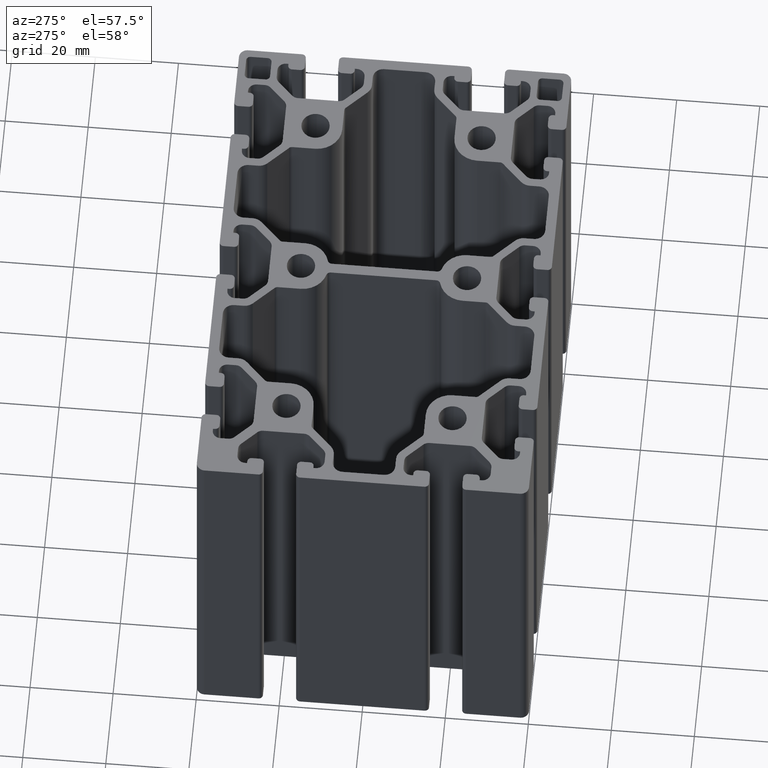
[diagram: clean part render]
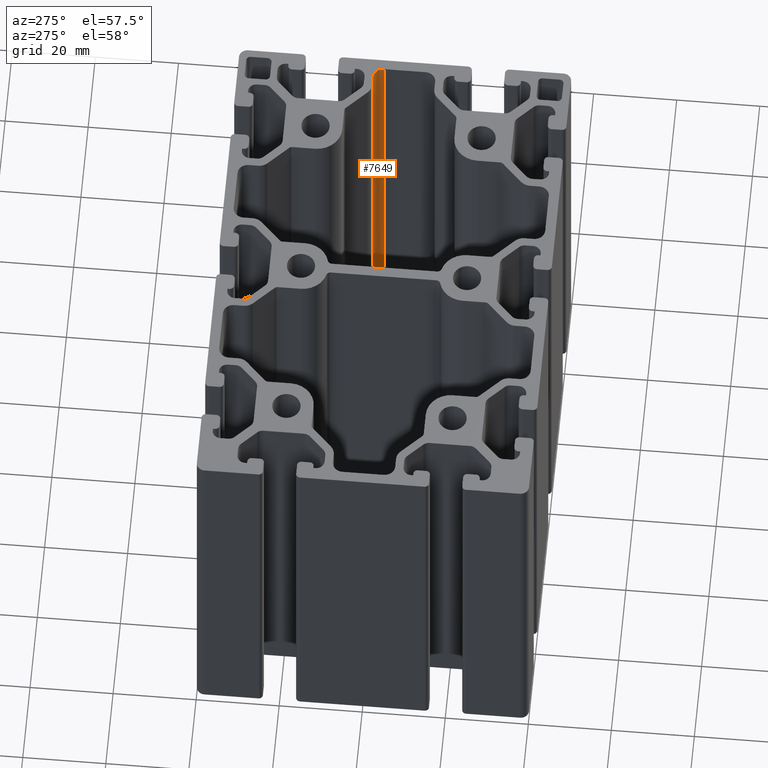
[diagram: same view with one face highlighted and labeled with its STEP entity id]
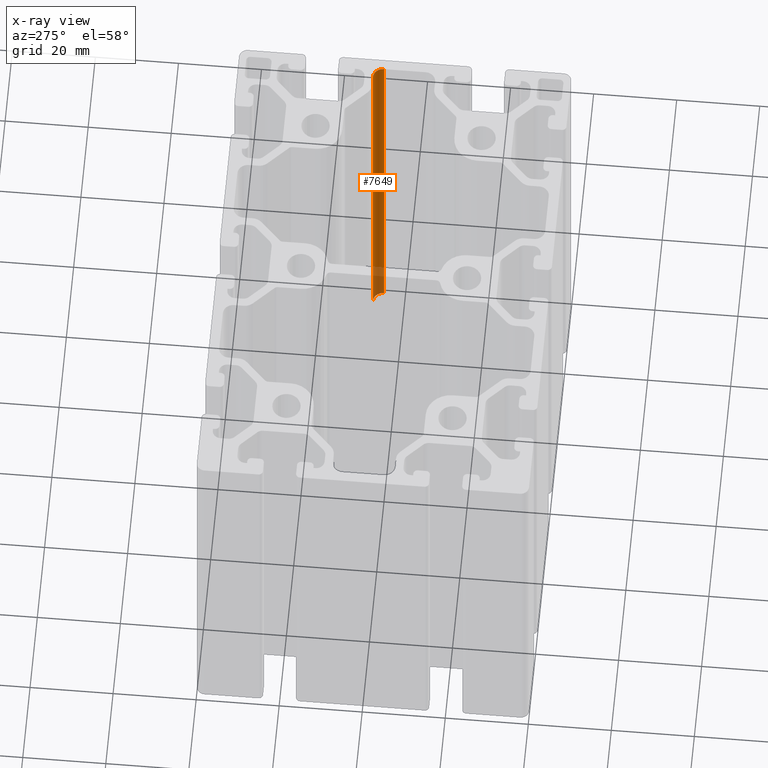
[diagram: x-ray of the same camera — body ghosted, the highlighted face saturated]
A machine part, auxiliary view. The second image highlights one B-rep face of the part: STEP entity #7649.
The next image is the same camera in x-ray: the body ghosted, the highlighted face saturated — about 12% of this face is hidden behind the body in this view.
In plain terms, the highlighted cylindrical surface (edge-blend (fillet) strip) has radius 2.5 mm, axis along (0, 0, 1).
Its self-contained STEP definition (entity closure, byte-faithful):
#577=FACE_OUTER_BOUND('',#967,.T.);
#967=EDGE_LOOP('',(#6185,#6186,#6187,#6188));
#1714=LINE('',#12789,#2482);
#1716=LINE('',#12795,#2484);
#2482=VECTOR('',#10484,100.);
#2484=VECTOR('',#10490,100.);
#2905=CIRCLE('',#8372,2.5);
#2906=CIRCLE('',#8373,2.5);
#3637=VERTEX_POINT('',#12786);
#3638=VERTEX_POINT('',#12788);
#3639=VERTEX_POINT('',#12792);
#3640=VERTEX_POINT('',#12794);
#4722=EDGE_CURVE('',#3638,#3637,#1714,.T.);
#4724=EDGE_CURVE('',#3639,#3637,#2905,.T.);
#4725=EDGE_CURVE('',#3640,#3639,#1716,.T.);
#4726=EDGE_CURVE('',#3638,#3640,#2906,.T.);
#6185=ORIENTED_EDGE('',*,*,#4724,.F.);
#6186=ORIENTED_EDGE('',*,*,#4725,.F.);
#6187=ORIENTED_EDGE('',*,*,#4726,.F.);
#6188=ORIENTED_EDGE('',*,*,#4722,.T.);
#7293=CYLINDRICAL_SURFACE('',#8371,2.5);
#7649=ADVANCED_FACE('',(#577),#7293,.F.);
#8371=AXIS2_PLACEMENT_3D('',#12791,#10486,#10487);
#8372=AXIS2_PLACEMENT_3D('',#12793,#10488,#10489);
#8373=AXIS2_PLACEMENT_3D('',#12796,#10491,#10492);
#10484=DIRECTION('',(0.,0.,1.));
#10486=DIRECTION('center_axis',(0.,0.,1.));
#10487=DIRECTION('ref_axis',(1.,0.,0.));
#10488=DIRECTION('center_axis',(0.,0.,-1.));
#10489=DIRECTION('ref_axis',(1.,0.,0.));
#10490=DIRECTION('',(0.,0.,1.));
#10491=DIRECTION('center_axis',(0.,0.,1.));
#10492=DIRECTION('ref_axis',(1.,0.,0.));
#12786=CARTESIAN_POINT('',(57.5,4.99999999999999,100.));
#12788=CARTESIAN_POINT('',(57.5,4.99999999999999,0.));
#12789=CARTESIAN_POINT('',(57.5,4.99999999999999,0.));
#12791=CARTESIAN_POINT('Origin',(55.,4.99999999999999,0.));
#12792=CARTESIAN_POINT('',(55.,7.49999999999999,100.));
#12793=CARTESIAN_POINT('Origin',(55.,4.99999999999999,100.));
#12794=CARTESIAN_POINT('',(55.,7.49999999999999,0.));
#12795=CARTESIAN_POINT('',(55.,7.49999999999999,0.));
#12796=CARTESIAN_POINT('Origin',(55.,4.99999999999999,0.));